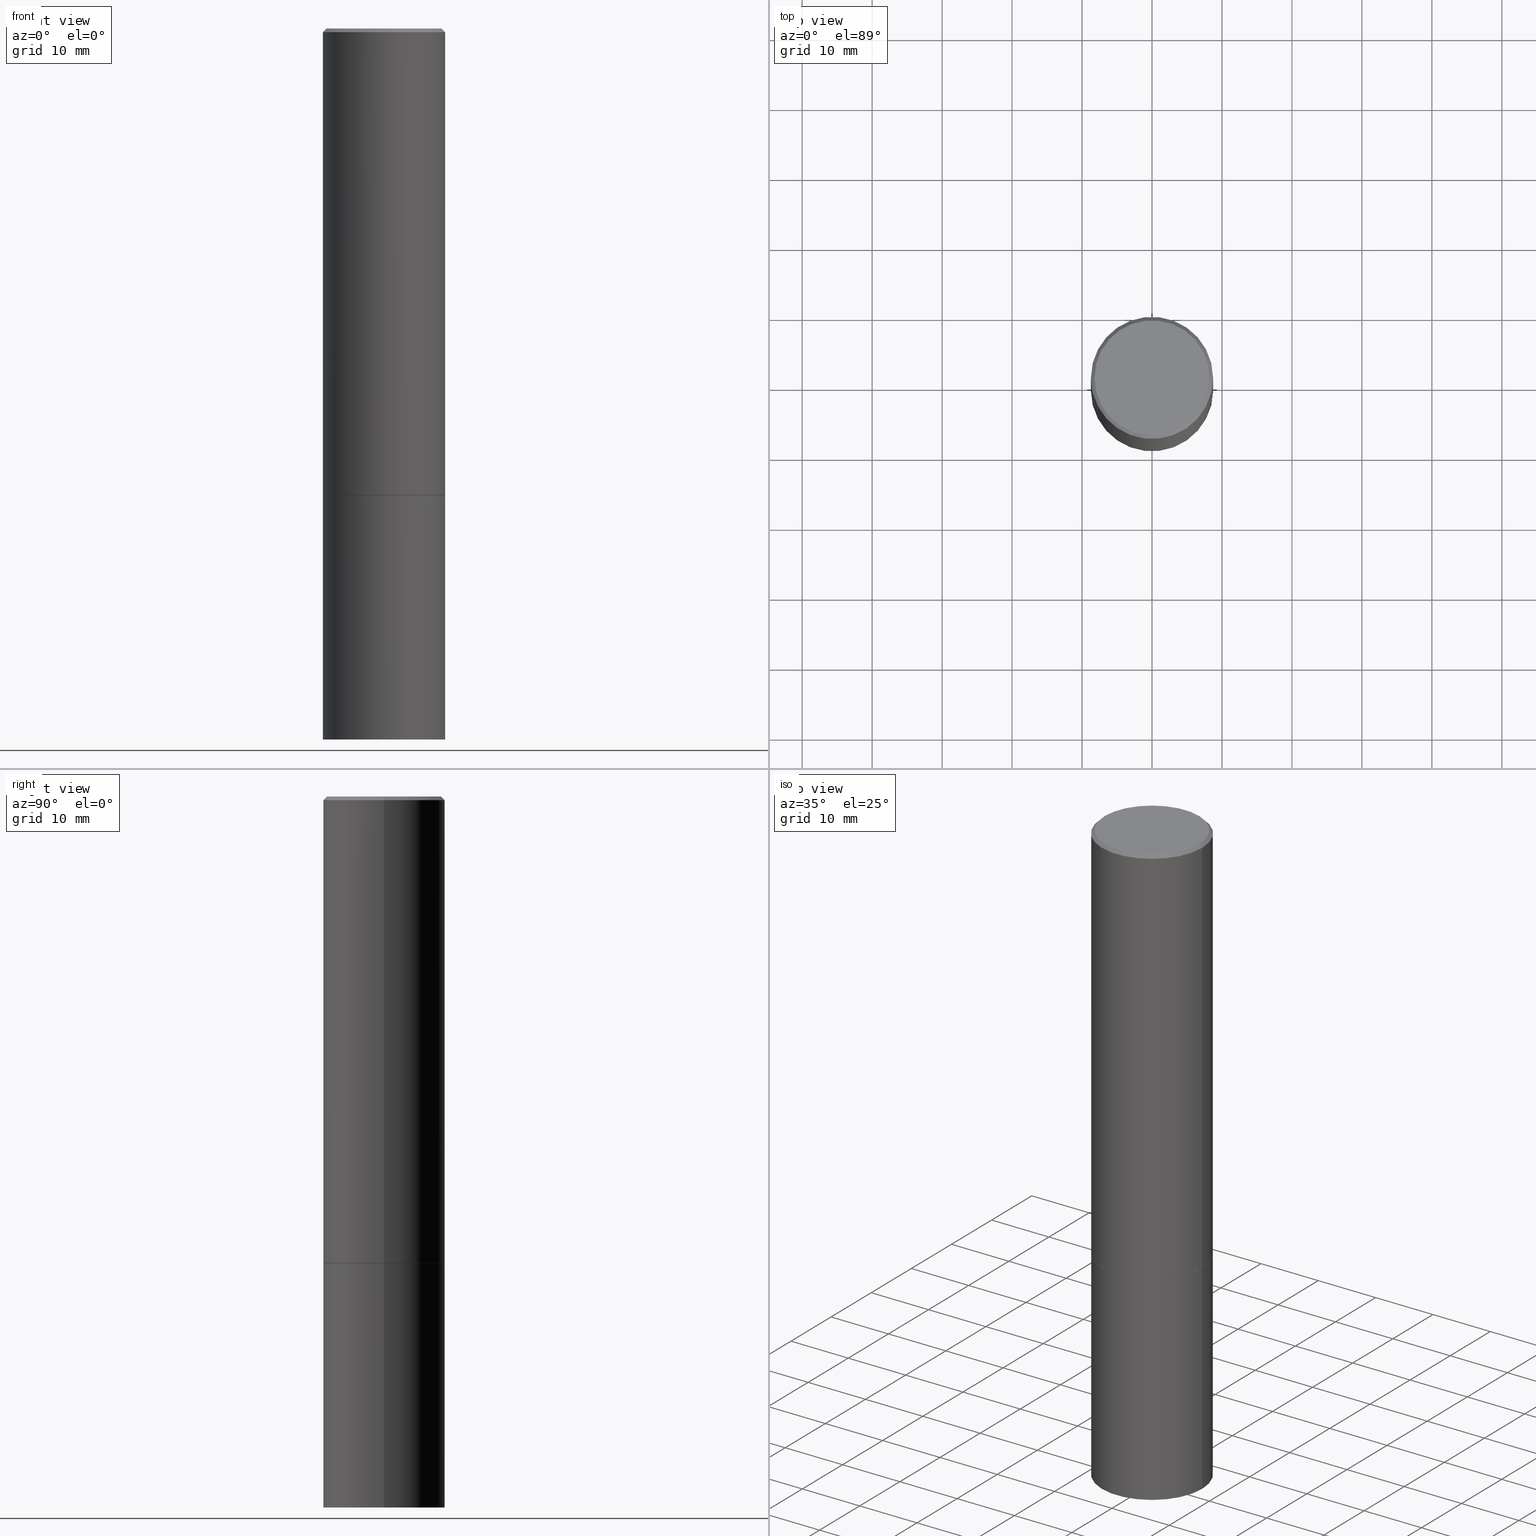
[diagram: canonical four-view strip — front | top / right | iso, engineering-drawing reading convention]
A machine part, canonical four-view strip (front | top / right | iso — engineering-drawing reading convention). The complete STEP part file that produces these views, byte-faithful:
ISO-10303-21;
HEADER;
FILE_DESCRIPTION (( 'STEP AP203' ),
    '1' );
FILE_NAME ('39169.STEP',
    '2023-03-21T21:01:31',
    ( '' ),
    ( '' ),
    'SwSTEP 2.0',
    'SolidWorks 2022',
    '' );
FILE_SCHEMA (( 'CONFIG_CONTROL_DESIGN' ));
ENDSEC;

DATA;
#1 = AXIS2_PLACEMENT_3D ( 'NONE', #155, #115, #390 ) ;
#2 = ORGANIZATION ( 'UNSPECIFIED', 'UNSPECIFIED', '' ) ;
#3 = PRODUCT_RELATED_PRODUCT_CATEGORY ( 'detail', '', ( #39 ) ) ;
#4 = CARTESIAN_POINT ( 'NONE',  ( 9.781875224740546387E-29, -1.396592535537258233E-14, -4.000000000000000000 ) ) ;
#5 = DIRECTION ( 'NONE',  ( -2.445468806185136597E-29, 3.491481338843145583E-15, 1.000000000000000000 ) ) ;
#6 = DIRECTION ( 'NONE',  ( 1.000000000000000000, -6.982962677686269077E-15, 0.000000000000000000 ) ) ;
#7 = ORIENTED_EDGE ( 'NONE', *, *, #37, .T. ) ;
#8 = APPROVAL_PERSON_ORGANIZATION ( #201, #285, #290 ) ;
#9 = CARTESIAN_POINT ( 'NONE',  ( 6.419355616235984688E-29, -9.165138514463258190E-15, -2.625000000000000444 ) ) ;
#10 = FACE_OUTER_BOUND ( 'NONE', #230, .T. ) ;
#11 = DIRECTION ( 'NONE',  ( -2.445468806185136597E-29, 3.491481338843145583E-15, 1.000000000000000000 ) ) ;
#12 = ORIENTED_EDGE ( 'NONE', *, *, #278, .T. ) ;
#13 = ADVANCED_FACE ( 'NONE', ( #309 ), #378, .T. ) ;
#14 = APPROVAL_ROLE ( '' ) ;
#15 = PRODUCT_DEFINITION_SHAPE ( 'NONE', 'NONE',  #24 ) ;
#16 = FACE_OUTER_BOUND ( 'NONE', #336, .T. ) ;
#17 = COORDINATED_UNIVERSAL_TIME_OFFSET ( 5, 0, .BEHIND. ) ;
#18 = CIRCLE ( 'NONE', #226, 0.3437499999999997224 ) ;
#19 = ADVANCED_FACE ( 'NONE', ( #34 ), #25, .T. ) ;
#20 = CC_DESIGN_DATE_AND_TIME_ASSIGNMENT ( #196, #179, ( #357 ) ) ;
#21 = CARTESIAN_POINT ( 'NONE',  ( 9.781875224740546387E-29, -1.396592535537258233E-14, -4.000000000000000000 ) ) ;
#22 = AXIS2_PLACEMENT_3D ( 'NONE', #275, #5, #216 ) ;
#23 = EDGE_LOOP ( 'NONE', ( #86, #35, #287, #113 ) ) ;
#24 = PRODUCT_DEFINITION ( 'UNKNOWN', '', #344, #301 ) ;
#25 = CONICAL_SURFACE ( 'NONE', #98, 0.3427499999999999991, 0.7853981633972775267 ) ;
#26 = VECTOR ( 'NONE', #126, 39.37007874015748143 ) ;
#27 = VERTEX_POINT ( 'NONE', #282 ) ;
#28 = VERTEX_POINT ( 'NONE', #166 ) ;
#29 = DIRECTION ( 'NONE',  ( -1.000000000000000000, 6.982962677686266711E-15, 0.000000000000000000 ) ) ;
#30 = DIRECTION ( 'NONE',  ( -2.445468806185136597E-29, 3.491481338843145583E-15, 1.000000000000000000 ) ) ;
#31 = VECTOR ( 'NONE', #319, 39.37007874015748143 ) ;
#32 = DIRECTION ( 'NONE',  ( 2.438088387897960049E-29, -3.491481338843145188E-15, -1.000000000000000000 ) ) ;
#33 = LOCAL_TIME ( 17, 1, 31.00000000000000000, #112 ) ;
#34 = FACE_OUTER_BOUND ( 'NONE', #337, .T. ) ;
#35 = ORIENTED_EDGE ( 'NONE', *, *, #342, .T. ) ;
#36 = ADVANCED_FACE ( 'NONE', ( #10 ), #38, .F. ) ;
#37 = EDGE_CURVE ( 'NONE', #151, #341, #339, .T. ) ;
#38 = PLANE ( 'NONE',  #111 ) ;
#39 = PRODUCT ( '39169', '39169', '', ( #298 ) ) ;
#40 = VECTOR ( 'NONE', #373, 39.37007874015748143 ) ;
#41 = VECTOR ( 'NONE', #148, 39.37007874015748143 ) ;
#42 = LINE ( 'NONE', #101, #364 ) ;
#43 = ADVANCED_BREP_SHAPE_REPRESENTATION ( '39169', ( #172, #171, #281 ), #178 ) ;
#44 = ADVANCED_FACE ( 'NONE', ( #100 ), #267, .F. ) ;
#45 = CALENDAR_DATE ( 2023, 21, 3 ) ;
#46 = APPROVAL_STATUS ( 'not_yet_approved' ) ;
#47 = DIRECTION ( 'NONE',  ( -2.445468806185136597E-29, 3.491481338843145583E-15, 1.000000000000000000 ) ) ;
#48 = COORDINATED_UNIVERSAL_TIME_OFFSET ( 5, 0, .BEHIND. ) ;
#49 = CIRCLE ( 'NONE', #236, 0.3437500000000000000 ) ;
#50 = APPROVAL_STATUS ( 'not_yet_approved' ) ;
#51 = EDGE_CURVE ( 'NONE', #70, #189, #355, .T. ) ;
#52 = LINE ( 'NONE', #185, #386 ) ;
#53 = ORIENTED_EDGE ( 'NONE', *, *, #64, .F. ) ;
#54 = CARTESIAN_POINT ( 'NONE',  ( 6.416910147429799085E-29, -9.161647033124413605E-15, -2.624000000000000110 ) ) ;
#55 = AXIS2_PLACEMENT_3D ( 'NONE', #156, #61, #60 ) ;
#56 = EDGE_CURVE ( 'NONE', #151, #58, #82, .T. ) ;
#57 = ORIENTED_EDGE ( 'NONE', *, *, #169, .F. ) ;
#58 = VERTEX_POINT ( 'NONE', #102 ) ;
#59 = CARTESIAN_POINT ( 'NONE',  ( 4.890937612370296805E-31, -6.982962677686323656E-17, -0.02000000000000009409 ) ) ;
#60 = DIRECTION ( 'NONE',  ( 1.000000000000000000, -6.982962677686267499E-15, 4.876176775795935232E-29 ) ) ;
#61 = DIRECTION ( 'NONE',  ( -2.445468806185136597E-29, 3.491481338843145583E-15, 1.000000000000000000 ) ) ;
#62 = CC_DESIGN_PERSON_AND_ORGANIZATION_ASSIGNMENT ( #197, #237, ( #39 ) ) ;
#63 = VERTEX_POINT ( 'NONE', #259 ) ;
#64 = EDGE_CURVE ( 'NONE', #27, #271, #272, .T. ) ;
#65 = ORIENTED_EDGE ( 'NONE', *, *, #231, .T. ) ;
#66 = DIRECTION ( 'NONE',  ( -1.000000000000000000, 6.982962677686265922E-15, -4.876176775795935793E-29 ) ) ;
#67 = ORIENTED_EDGE ( 'NONE', *, *, #283, .T. ) ;
#68 = ADVANCED_FACE ( 'NONE', ( #200 ), #318, .T. ) ;
#69 = CC_DESIGN_PERSON_AND_ORGANIZATION_ASSIGNMENT ( #240, #173, ( #24 ) ) ;
#70 = VERTEX_POINT ( 'NONE', #235 ) ;
#71 = CIRCLE ( 'NONE', #238, 0.3237499999999996492 ) ;
#72 = AXIS2_PLACEMENT_3D ( 'NONE', #150, #352, #356 ) ;
#73 = LINE ( 'NONE', #353, #41 ) ;
#74 = LINE ( 'NONE', #139, #31 ) ;
#75 = DATE_AND_TIME ( #322, #227 ) ;
#76 = CARTESIAN_POINT ( 'NONE',  ( 0.3437500000000000000, -2.400393420454653787E-15, 1.676185766679852859E-29 ) ) ;
#77 = AXIS2_PLACEMENT_3D ( 'NONE', #268, #239, #81 ) ;
#78 = EDGE_CURVE ( 'NONE', #189, #70, #71, .T. ) ;
#79 = CARTESIAN_POINT ( 'NONE',  ( 0.000000000000000000, 0.000000000000000000, 0.000000000000000000 ) ) ;
#80 = PERSON_AND_ORGANIZATION_ROLE ( 'design_supplier' ) ;
#81 = DIRECTION ( 'NONE',  ( 1.000000000000000000, -6.982962677686265133E-15, 0.000000000000000000 ) ) ;
#82 = CIRCLE ( 'NONE', #177, 0.3437500000000000000 ) ;
#83 = ORIENTED_EDGE ( 'NONE', *, *, #108, .F. ) ;
#84 = CC_DESIGN_PERSON_AND_ORGANIZATION_ASSIGNMENT ( #262, #80, ( #344 ) ) ;
#85 = AXIS2_PLACEMENT_3D ( 'NONE', #306, #32, #66 ) ;
#86 = ORIENTED_EDGE ( 'NONE', *, *, #78, .F. ) ;
#87 = CYLINDRICAL_SURFACE ( 'NONE', #162, 0.3437500000000000000 ) ;
#88 = DIRECTION ( 'NONE',  ( 2.445468806185136597E-29, -3.491481338843145583E-15, -1.000000000000000000 ) ) ;
#89 = EDGE_LOOP ( 'NONE', ( #217, #244, #67, #186 ) ) ;
#90 = EDGE_CURVE ( 'NONE', #70, #341, #382, .T. ) ;
#91 = CARTESIAN_POINT ( 'NONE',  ( 6.419355616235984688E-29, -9.165138514463258190E-15, -2.625000000000000444 ) ) ;
#92 = AXIS2_PLACEMENT_3D ( 'NONE', #116, #210, #147 ) ;
#93 = CC_DESIGN_DATE_AND_TIME_ASSIGNMENT ( #136, #141, ( #24 ) ) ;
#94 = EDGE_LOOP ( 'NONE', ( #83, #277, #332 ) ) ;
#95 = ORIENTED_EDGE ( 'NONE', *, *, #193, .F. ) ;
#96 = CARTESIAN_POINT ( 'NONE',  ( 0.000000000000000000, 0.000000000000000000, 0.000000000000000000 ) ) ;
#97 = CARTESIAN_POINT ( 'NONE',  ( 6.419355616235984688E-29, -9.165138514463258190E-15, -2.625000000000000444 ) ) ;
#98 = AXIS2_PLACEMENT_3D ( 'NONE', #312, #371, #164 ) ;
#99 = CARTESIAN_POINT ( 'NONE',  ( 0.3437499999999998335, -2.400393420454653393E-15, 1.676185766679852018E-29 ) ) ;
#100 = FACE_OUTER_BOUND ( 'NONE', #188, .T. ) ;
#101 = CARTESIAN_POINT ( 'NONE',  ( 0.3427499999999999991, -1.155854897224022715E-14, -2.625000000000000444 ) ) ;
#102 = CARTESIAN_POINT ( 'NONE',  ( 0.3437500000000000000, -1.156204045357906700E-14, -2.624000000000000110 ) ) ;
#103 = CLOSED_SHELL ( 'NONE', ( #19, #375, #110, #123, #257, #13, #36, #379 ) ) ;
#104 = APPROVAL_DATE_TIME ( #75, #203 ) ;
#105 = LOCAL_TIME ( 17, 1, 31.00000000000000000, #48 ) ;
#106 = EDGE_CURVE ( 'NONE', #204, #152, #349, .T. ) ;
#107 = DIRECTION ( 'NONE',  ( -0.7071067811865469066, 2.468850131082249961E-15, -0.7071067811865482389 ) ) ;
#108 = EDGE_CURVE ( 'NONE', #63, #204, #74, .T. ) ;
#109 = CALENDAR_DATE ( 2023, 21, 3 ) ;
#110 = ADVANCED_FACE ( 'NONE', ( #380 ), #307, .T. ) ;
#111 = AXIS2_PLACEMENT_3D ( 'NONE', #97, #134, #225 ) ;
#112 = COORDINATED_UNIVERSAL_TIME_OFFSET ( 5, 0, .BEHIND. ) ;
#113 = ORIENTED_EDGE ( 'NONE', *, *, #90, .F. ) ;
#114 = LINE ( 'NONE', #181, #199 ) ;
#115 = DIRECTION ( 'NONE',  ( 2.445468806185136597E-29, -3.491481338843145583E-15, -1.000000000000000000 ) ) ;
#116 = CARTESIAN_POINT ( 'NONE',  ( 6.419355616235983567E-29, -9.165138514463256612E-15, -2.625000000000000000 ) ) ;
#117 = DIRECTION ( 'NONE',  ( -2.445468806185136877E-29, 3.491481338843145188E-15, 1.000000000000000000 ) ) ;
#118 = EDGE_LOOP ( 'NONE', ( #286, #222, #12, #57 ) ) ;
#119 = CIRCLE ( 'NONE', #170, 0.3437500000000000000 ) ;
#120 = CARTESIAN_POINT ( 'NONE',  ( 0.3437500000000006661, -1.632422154210654946E-14, -4.000000000000000000 ) ) ;
#121 = LENGTH_MEASURE_WITH_UNIT ( LENGTH_MEASURE( 0.02539999999999999897 ), #167 );
#122 = APPROVAL_DATE_TIME ( #246, #285 ) ;
#123 = ADVANCED_FACE ( 'NONE', ( #16 ), #245, .T. ) ;
#124 = DIRECTION ( 'NONE',  ( 1.000000000000000000, 0.000000000000000000, 0.000000000000000000 ) ) ;
#125 = ORIENTED_EDGE ( 'NONE', *, *, #175, .T. ) ;
#126 = DIRECTION ( 'NONE',  ( -0.9986295347545742773, 6.790662755453668466E-15, -0.05233595624293643084 ) ) ;
#127 = ORIENTED_EDGE ( 'NONE', *, *, #342, .F. ) ;
#128 = AXIS2_PLACEMENT_3D ( 'NONE', #157, #252, #29 ) ;
#129 = CARTESIAN_POINT ( 'NONE',  ( -0.3437499999999997224, 2.330563793677788911E-15, -0.02000000000000009409 ) ) ;
#130 = DIRECTION ( 'NONE',  ( 1.000000000000000000, -6.982962677686265133E-15, 0.000000000000000000 ) ) ;
#131 = DIRECTION ( 'NONE',  ( 2.438088387897960049E-29, -3.491481338843145188E-15, -1.000000000000000000 ) ) ;
#132 = ORIENTED_EDGE ( 'NONE', *, *, #51, .T. ) ;
#133 = LINE ( 'NONE', #99, #145 ) ;
#134 = DIRECTION ( 'NONE',  ( -2.438088387897960049E-29, 3.491481338843145188E-15, 1.000000000000000000 ) ) ;
#135 = VECTOR ( 'NONE', #107, 39.37007874015748143 ) ;
#136 = DATE_AND_TIME ( #346, #274 ) ;
#137 = DIRECTION ( 'NONE',  ( -2.445468806185136597E-29, 3.491481338843145583E-15, 1.000000000000000000 ) ) ;
#138 = COORDINATED_UNIVERSAL_TIME_OFFSET ( 5, 0, .BEHIND. ) ;
#139 = CARTESIAN_POINT ( 'NONE',  ( 7.993848666300651617E-19, -1.390302571108676536E-14, -3.981984825871457190 ) ) ;
#140 = AXIS2_PLACEMENT_3D ( 'NONE', #351, #324, #316 ) ;
#141 = DATE_TIME_ROLE ( 'creation_date' ) ;
#142 = DIRECTION ( 'NONE',  ( 1.000000000000000000, -6.982962677686263555E-15, 0.000000000000000000 ) ) ;
#143 = APPROVAL_STATUS ( 'not_yet_approved' ) ;
#144 = AXIS2_PLACEMENT_3D ( 'NONE', #205, #137, #350 ) ;
#145 = VECTOR ( 'NONE', #117, 39.37007874015748143 ) ;
#146 = DIRECTION ( 'NONE',  ( -2.445468806185136597E-29, 3.491481338843145583E-15, 1.000000000000000000 ) ) ;
#147 = DIRECTION ( 'NONE',  ( 1.000000000000000000, -6.982962677686269077E-15, 0.000000000000000000 ) ) ;
#148 = DIRECTION ( 'NONE',  ( -0.7071067811864267805, 7.493145998869918709E-15, 0.7071067811866682540 ) ) ;
#149 = ORIENTED_EDGE ( 'NONE', *, *, #78, .T. ) ;
#150 = CARTESIAN_POINT ( 'NONE',  ( 4.890937612370296805E-31, -6.982962677686323656E-17, -0.02000000000000009409 ) ) ;
#151 = VERTEX_POINT ( 'NONE', #250 ) ;
#152 = VERTEX_POINT ( 'NONE', #187 ) ;
#153 = CC_DESIGN_APPROVAL ( #279, ( #344 ) ) ;
#154 = CARTESIAN_POINT ( 'NONE',  ( 0.000000000000000000, 0.000000000000000000, 0.000000000000000000 ) ) ;
#155 = CARTESIAN_POINT ( 'NONE',  ( 4.890937612370296805E-31, -6.982962677686323656E-17, -0.02000000000000009409 ) ) ;
#156 = CARTESIAN_POINT ( 'NONE',  ( 0.000000000000000000, 0.000000000000000000, 0.000000000000000000 ) ) ;
#157 = CARTESIAN_POINT ( 'NONE',  ( 1.060161191344789336E-27, -1.513629209411318885E-13, -43.35206356602893152 ) ) ;
#158 = DIRECTION ( 'NONE',  ( 0.000000000000000000, 0.000000000000000000, 1.000000000000000000 ) ) ;
#159 = EDGE_LOOP ( 'NONE', ( #305, #7, #256, #255 ) ) ;
#160 = CARTESIAN_POINT ( 'NONE',  ( -0.3437500000000006661, -1.156553193491792420E-14, -4.000000000000000000 ) ) ;
#161 = ORIENTED_EDGE ( 'NONE', *, *, #108, .T. ) ;
#162 = AXIS2_PLACEMENT_3D ( 'NONE', #362, #326, #213 ) ;
#163 = FACE_OUTER_BOUND ( 'NONE', #94, .T. ) ;
#164 = DIRECTION ( 'NONE',  ( 1.000000000000000000, -6.982962677686265133E-15, 0.000000000000000000 ) ) ;
#165 = CARTESIAN_POINT ( 'NONE',  ( 0.3427499999999999991, -1.155854897224022715E-14, -2.625000000000000444 ) ) ;
#166 = CARTESIAN_POINT ( 'NONE',  ( 0.3437499999999997224, -2.428125813510825301E-15, -0.02000000000000009409 ) ) ;
#167 =( LENGTH_UNIT ( ) NAMED_UNIT ( * ) SI_UNIT ( $, .METRE. ) );
#168 = ORIENTED_EDGE ( 'NONE', *, *, #284, .T. ) ;
#169 = EDGE_CURVE ( 'NONE', #341, #28, #18, .T. ) ;
#170 = AXIS2_PLACEMENT_3D ( 'NONE', #21, #146, #270 ) ;
#171 = MANIFOLD_SOLID_BREP ( 'Body-Move/Copy2[2]', #103 ) ;
#172 = MANIFOLD_SOLID_BREP ( 'Body-Move/Copy2[1]', #325 ) ;
#173 = PERSON_AND_ORGANIZATION_ROLE ( 'creator' ) ;
#174 = APPLICATION_PROTOCOL_DEFINITION ( 'international standard', 'config_control_design', 1994, #367 ) ;
#175 = EDGE_CURVE ( 'NONE', #204, #333, #49, .T. ) ;
#176 = DIRECTION ( 'NONE',  ( -2.445468806185136597E-29, 3.491481338843145583E-15, 1.000000000000000000 ) ) ;
#177 = AXIS2_PLACEMENT_3D ( 'NONE', #263, #202, #142 ) ;
#178 =( GEOMETRIC_REPRESENTATION_CONTEXT ( 3 ) GLOBAL_UNCERTAINTY_ASSIGNED_CONTEXT ( ( #215 ) ) GLOBAL_UNIT_ASSIGNED_CONTEXT ( ( #251, #288, #388 ) ) REPRESENTATION_CONTEXT ( 'NONE', 'WORKASPACE' ) );
#179 = DATE_TIME_ROLE ( 'classification_date' ) ;
#180 = APPROVAL_ROLE ( '' ) ;
#181 = CARTESIAN_POINT ( 'NONE',  ( -0.3437500000000000000, 2.442490654175344389E-15, -1.690883937275123635E-29 ) ) ;
#182 = ORIENTED_EDGE ( 'NONE', *, *, #283, .F. ) ;
#183 = APPROVAL_PERSON_ORGANIZATION ( #377, #279, #14 ) ;
#184 = DIRECTION ( 'NONE',  ( -2.445468806185136597E-29, 3.491481338843145583E-15, 1.000000000000000000 ) ) ;
#185 = CARTESIAN_POINT ( 'NONE',  ( 0.3437499999999997224, -2.428125813510825301E-15, -0.02000000000000009409 ) ) ;
#186 = ORIENTED_EDGE ( 'NONE', *, *, #56, .F. ) ;
#187 = CARTESIAN_POINT ( 'NONE',  ( 0.3437500000000000000, -1.156553193491791158E-14, -2.625000000000000000 ) ) ;
#188 = EDGE_LOOP ( 'NONE', ( #214, #161, #330 ) ) ;
#189 = VERTEX_POINT ( 'NONE', #328 ) ;
#190 = AXIS2_PLACEMENT_3D ( 'NONE', #9, #30, #130 ) ;
#191 = ORIENTED_EDGE ( 'NONE', *, *, #308, .F. ) ;
#192 = ORIENTED_EDGE ( 'NONE', *, *, #51, .F. ) ;
#193 = EDGE_CURVE ( 'NONE', #333, #365, #114, .T. ) ;
#194 = CIRCLE ( 'NONE', #22, 0.3437500000000000000 ) ;
#195 = PLANE ( 'NONE',  #374 ) ;
#196 = DATE_AND_TIME ( #109, #241 ) ;
#197 = PERSON_AND_ORGANIZATION ( #232, #2 ) ;
#198 = PERSON_AND_ORGANIZATION ( #232, #2 ) ;
#199 = VECTOR ( 'NONE', #243, 39.37007874015748143 ) ;
#200 = FACE_OUTER_BOUND ( 'NONE', #296, .T. ) ;
#201 = PERSON_AND_ORGANIZATION ( #232, #2 ) ;
#202 = DIRECTION ( 'NONE',  ( -2.445468806185136597E-29, 3.491481338843145583E-15, 1.000000000000000000 ) ) ;
#203 = APPROVAL ( #143, 'UNSPECIFIED' ) ;
#204 = VERTEX_POINT ( 'NONE', #120 ) ;
#205 = CARTESIAN_POINT ( 'NONE',  ( -1.043851414335219820E-46, 1.490343170380447200E-32, 4.268512490100411279E-18 ) ) ;
#206 = DIRECTION ( 'NONE',  ( 0.7071067811865469066, -7.319954787623254468E-15, -0.7071067811865482389 ) ) ;
#207 = APPROVAL_PERSON_ORGANIZATION ( #233, #203, #180 ) ;
#208 = DIRECTION ( 'NONE',  ( -2.445468806185136597E-29, 3.491481338843145583E-15, 1.000000000000000000 ) ) ;
#209 = SHAPE_DEFINITION_REPRESENTATION ( #15, #43 ) ;
#210 = DIRECTION ( 'NONE',  ( -2.445468806185136597E-29, 3.491481338843145583E-15, 1.000000000000000000 ) ) ;
#211 = EDGE_LOOP ( 'NONE', ( #95, #65, #223, #191 ) ) ;
#212 = ADVANCED_FACE ( 'NONE', ( #276 ), #87, .T. ) ;
#213 = DIRECTION ( 'NONE',  ( 1.000000000000000000, -6.982962677686265922E-15, 4.876176775795935793E-29 ) ) ;
#214 = ORIENTED_EDGE ( 'NONE', *, *, #314, .F. ) ;
#215 = UNCERTAINTY_MEASURE_WITH_UNIT (LENGTH_MEASURE( 1.000000000000000082E-05 ), #251, 'distance_accuracy_value', 'NONE');
#216 = DIRECTION ( 'NONE',  ( 1.000000000000000000, -6.982962677686269077E-15, 0.000000000000000000 ) ) ;
#217 = ORIENTED_EDGE ( 'NONE', *, *, #284, .F. ) ;
#218 = CIRCLE ( 'NONE', #249, 0.3427499999999999991 ) ;
#219 = FACE_OUTER_BOUND ( 'NONE', #360, .T. ) ;
#220 = DIRECTION ( 'NONE',  ( -1.000000000000000000, 6.982962677686266711E-15, 0.000000000000000000 ) ) ;
#221 = DIRECTION ( 'NONE',  ( -1.000000000000000000, 6.982962677686265922E-15, -4.876176775795935793E-29 ) ) ;
#222 = ORIENTED_EDGE ( 'NONE', *, *, #56, .T. ) ;
#223 = ORIENTED_EDGE ( 'NONE', *, *, #106, .T. ) ;
#224 = DIRECTION ( 'NONE',  ( 1.000000000000000000, -6.982962677686267499E-15, 4.876176775795935232E-29 ) ) ;
#225 = DIRECTION ( 'NONE',  ( 1.000000000000000000, -6.982962677686265922E-15, 4.876176775795935793E-29 ) ) ;
#226 = AXIS2_PLACEMENT_3D ( 'NONE', #59, #208, #302 ) ;
#227 = LOCAL_TIME ( 17, 1, 31.00000000000000000, #315 ) ;
#228 = CARTESIAN_POINT ( 'NONE',  ( 2.400393420454718079E-15, 0.3437499999999908407, -2.625000000000000888 ) ) ;
#229 = EDGE_CURVE ( 'NONE', #271, #27, #218, .T. ) ;
#230 = EDGE_LOOP ( 'NONE', ( #313, #53 ) ) ;
#231 = EDGE_CURVE ( 'NONE', #333, #204, #119, .T. ) ;
#232 = PERSON ( 'UNSPECIFIED', 'UNSPECIFIED', 'UNSPECIFIED', ('UNSPECIFIED'), ('UNSPECIFIED'), ('UNSPECIFIED') ) ;
#233 = PERSON_AND_ORGANIZATION ( #232, #2 ) ;
#234 = APPLICATION_CONTEXT ( 'configuration controlled 3d designs of mechanical parts and assemblies' ) ;
#235 = CARTESIAN_POINT ( 'NONE',  ( -0.3237499999999996492, 2.295648980289358051E-15, 4.268512490084478446E-18 ) ) ;
#236 = AXIS2_PLACEMENT_3D ( 'NONE', #4, #359, #6 ) ;
#237 = PERSON_AND_ORGANIZATION_ROLE ( 'design_owner' ) ;
#238 = AXIS2_PLACEMENT_3D ( 'NONE', #260, #176, #293 ) ;
#239 = DIRECTION ( 'NONE',  ( -2.445468806185136597E-29, 3.491481338843145583E-15, 1.000000000000000000 ) ) ;
#240 = PERSON_AND_ORGANIZATION ( #232, #2 ) ;
#241 = LOCAL_TIME ( 17, 1, 31.00000000000000000, #138 ) ;
#242 = EDGE_LOOP ( 'NONE', ( #361, #280 ) ) ;
#243 = DIRECTION ( 'NONE',  ( -2.445468806185136877E-29, 3.491481338843145188E-15, 1.000000000000000000 ) ) ;
#244 = ORIENTED_EDGE ( 'NONE', *, *, #64, .T. ) ;
#245 = CONICAL_SURFACE ( 'NONE', #1, 0.3437499999999997224, 0.7853981633974473908 ) ;
#246 = DATE_AND_TIME ( #381, #33 ) ;
#247 = EDGE_CURVE ( 'NONE', #58, #151, #327, .T. ) ;
#248 = ORIENTED_EDGE ( 'NONE', *, *, #247, .F. ) ;
#249 = AXIS2_PLACEMENT_3D ( 'NONE', #91, #331, #295 ) ;
#250 = CARTESIAN_POINT ( 'NONE',  ( -0.3437500000000000000, -2.173247675775292485E-15, -2.624000000000000110 ) ) ;
#251 =( CONVERSION_BASED_UNIT ( 'INCH', #121 ) LENGTH_UNIT ( ) NAMED_UNIT ( #266 ) );
#252 = DIRECTION ( 'NONE',  ( 2.445468806185136597E-29, -3.491481338843145583E-15, -1.000000000000000000 ) ) ;
#253 = ORIENTED_EDGE ( 'NONE', *, *, #169, .T. ) ;
#254 = DIRECTION ( 'NONE',  ( 1.000000000000000000, -6.982962677686263555E-15, 0.000000000000000000 ) ) ;
#255 = ORIENTED_EDGE ( 'NONE', *, *, #278, .F. ) ;
#256 = ORIENTED_EDGE ( 'NONE', *, *, #347, .F. ) ;
#257 = ADVANCED_FACE ( 'NONE', ( #366 ), #369, .T. ) ;
#258 = CARTESIAN_POINT ( 'NONE',  ( -0.3437499999999998335, 2.442490654175343206E-15, -1.690883937275123074E-29 ) ) ;
#259 = CARTESIAN_POINT ( 'NONE',  ( 9.737261470902389695E-29, -1.390382509595329685E-14, -3.981984825871457190 ) ) ;
#260 = CARTESIAN_POINT ( 'NONE',  ( -1.043851414335219820E-46, 1.490343170380447200E-32, 4.268512490100411279E-18 ) ) ;
#261 = CC_DESIGN_APPROVAL ( #285, ( #357 ) ) ;
#262 = PERSON_AND_ORGANIZATION ( #232, #2 ) ;
#263 = CARTESIAN_POINT ( 'NONE',  ( 6.416910147429799085E-29, -9.161647033124413605E-15, -2.624000000000000110 ) ) ;
#264 = APPROVAL_DATE_TIME ( #265, #279 ) ;
#265 = DATE_AND_TIME ( #45, #105 ) ;
#266 = DIMENSIONAL_EXPONENTS ( 1.000000000000000000, 0.000000000000000000, 0.000000000000000000, 0.000000000000000000, 0.000000000000000000, 0.000000000000000000, 0.000000000000000000 ) ;
#267 = CONICAL_SURFACE ( 'NONE', #338, 751.2258538476739886, 1.518436449235074148 ) ;
#268 = CARTESIAN_POINT ( 'NONE',  ( 6.419355616235984688E-29, -9.165138514463258190E-15, -2.625000000000000444 ) ) ;
#269 = CIRCLE ( 'NONE', #72, 0.3437499999999997224 ) ;
#270 = DIRECTION ( 'NONE',  ( 1.000000000000000000, -6.982962677686269077E-15, 0.000000000000000000 ) ) ;
#271 = VERTEX_POINT ( 'NONE', #165 ) ;
#272 = CIRCLE ( 'NONE', #77, 0.3427499999999999991 ) ;
#273 = ORIENTED_EDGE ( 'NONE', *, *, #90, .T. ) ;
#274 = LOCAL_TIME ( 17, 1, 31.00000000000000000, #17 ) ;
#275 = CARTESIAN_POINT ( 'NONE',  ( 6.419355616235983567E-29, -9.165138514463256612E-15, -2.625000000000000000 ) ) ;
#276 = FACE_OUTER_BOUND ( 'NONE', #211, .T. ) ;
#277 = ORIENTED_EDGE ( 'NONE', *, *, #314, .T. ) ;
#278 = EDGE_CURVE ( 'NONE', #58, #28, #133, .T. ) ;
#279 = APPROVAL ( #50, 'UNSPECIFIED' ) ;
#280 = ORIENTED_EDGE ( 'NONE', *, *, #308, .T. ) ;
#281 = AXIS2_PLACEMENT_3D ( 'NONE', #154, #158, #124 ) ;
#282 = CARTESIAN_POINT ( 'NONE',  ( -0.3427499999999999991, -6.724454833297293196E-15, -2.625000000000000444 ) ) ;
#283 = EDGE_CURVE ( 'NONE', #271, #58, #42, .T. ) ;
#284 = EDGE_CURVE ( 'NONE', #27, #151, #73, .T. ) ;
#285 = APPROVAL ( #46, 'UNSPECIFIED' ) ;
#286 = ORIENTED_EDGE ( 'NONE', *, *, #37, .F. ) ;
#287 = ORIENTED_EDGE ( 'NONE', *, *, #347, .T. ) ;
#288 =( NAMED_UNIT ( * ) PLANE_ANGLE_UNIT ( ) SI_UNIT ( $, .RADIAN. ) );
#289 = PERSON_AND_ORGANIZATION ( #232, #2 ) ;
#290 = APPROVAL_ROLE ( '' ) ;
#291 = AXIS2_PLACEMENT_3D ( 'NONE', #54, #184, #254 ) ;
#292 = PERSON_AND_ORGANIZATION_ROLE ( 'creator' ) ;
#293 = DIRECTION ( 'NONE',  ( 1.000000000000000000, -6.982962677686266711E-15, 4.876157412475881652E-29 ) ) ;
#294 = VECTOR ( 'NONE', #385, 39.37007874015748143 ) ;
#295 = DIRECTION ( 'NONE',  ( 1.000000000000000000, -6.982962677686265133E-15, 0.000000000000000000 ) ) ;
#296 = EDGE_LOOP ( 'NONE', ( #125, #358, #368, #300 ) ) ;
#297 = CARTESIAN_POINT ( 'NONE',  ( 1.060161191344789336E-27, -1.513629209411318885E-13, -43.35206356602893152 ) ) ;
#298 = MECHANICAL_CONTEXT ( 'NONE', #234, 'mechanical' ) ;
#299 = CARTESIAN_POINT ( 'NONE',  ( -0.3437500000000000000, -9.123041280742575082E-15, -2.625000000000000000 ) ) ;
#300 = ORIENTED_EDGE ( 'NONE', *, *, #106, .F. ) ;
#301 = DESIGN_CONTEXT ( 'detailed design', #367, 'design' ) ;
#302 = DIRECTION ( 'NONE',  ( 1.000000000000000000, -6.982962677686266711E-15, 0.000000000000000000 ) ) ;
#303 = ADVANCED_FACE ( 'NONE', ( #389 ), #195, .F. ) ;
#304 = CARTESIAN_POINT ( 'NONE',  ( -7.993848664353087702E-19, -1.390302571108676536E-14, -3.981984825871457190 ) ) ;
#305 = ORIENTED_EDGE ( 'NONE', *, *, #247, .T. ) ;
#306 = CARTESIAN_POINT ( 'NONE',  ( 2.260734166900926402E-15, 0.3237499999999996492, -1.128232827205417129E-15 ) ) ;
#307 = CONICAL_SURFACE ( 'NONE', #140, 0.3437499999999997224, 0.7853981633974473908 ) ;
#308 = EDGE_CURVE ( 'NONE', #365, #152, #194, .T. ) ;
#309 = FACE_OUTER_BOUND ( 'NONE', #89, .T. ) ;
#310 = CC_DESIGN_SECURITY_CLASSIFICATION ( #357, ( #344 ) ) ;
#311 = CC_DESIGN_PERSON_AND_ORGANIZATION_ASSIGNMENT ( #289, #383, ( #357 ) ) ;
#312 = CARTESIAN_POINT ( 'NONE',  ( 6.419355616235984688E-29, -9.165138514463258190E-15, -2.625000000000000444 ) ) ;
#313 = ORIENTED_EDGE ( 'NONE', *, *, #229, .F. ) ;
#314 = EDGE_CURVE ( 'NONE', #63, #333, #370, .T. ) ;
#315 = COORDINATED_UNIVERSAL_TIME_OFFSET ( 5, 0, .BEHIND. ) ;
#316 = DIRECTION ( 'NONE',  ( -1.000000000000000000, 6.982962677686266711E-15, 0.000000000000000000 ) ) ;
#317 = APPLICATION_PROTOCOL_DEFINITION ( 'international standard', 'config_control_design', 1994, #234 ) ;
#318 = CYLINDRICAL_SURFACE ( 'NONE', #363, 0.3437500000000000000 ) ;
#319 = DIRECTION ( 'NONE',  ( 0.9986295347545742773, -7.033825938271997912E-15, -0.05233595624293643084 ) ) ;
#320 = CC_DESIGN_APPROVAL ( #203, ( #24 ) ) ;
#321 = DIRECTION ( 'NONE',  ( 1.000000000000000000, -6.982962677686265922E-15, 4.876176775795935793E-29 ) ) ;
#322 = CALENDAR_DATE ( 2023, 21, 3 ) ;
#323 = FACE_OUTER_BOUND ( 'NONE', #159, .T. ) ;
#324 = DIRECTION ( 'NONE',  ( 2.445468806185136597E-29, -3.491481338843145583E-15, -1.000000000000000000 ) ) ;
#325 = CLOSED_SHELL ( 'NONE', ( #68, #44, #329, #212, #303 ) ) ;
#326 = DIRECTION ( 'NONE',  ( -2.445468806185136597E-29, 3.491481338843145583E-15, 1.000000000000000000 ) ) ;
#327 = CIRCLE ( 'NONE', #291, 0.3437500000000000000 ) ;
#328 = CARTESIAN_POINT ( 'NONE',  ( 0.3237499999999996492, -2.324606020144678320E-15, 4.268512490116445031E-18 ) ) ;
#329 = ADVANCED_FACE ( 'NONE', ( #163 ), #387, .F. ) ;
#330 = ORIENTED_EDGE ( 'NONE', *, *, #231, .F. ) ;
#331 = DIRECTION ( 'NONE',  ( -2.445468806185136597E-29, 3.491481338843145583E-15, 1.000000000000000000 ) ) ;
#332 = ORIENTED_EDGE ( 'NONE', *, *, #175, .F. ) ;
#333 = VERTEX_POINT ( 'NONE', #160 ) ;
#334 = AXIS2_PLACEMENT_3D ( 'NONE', #96, #11, #224 ) ;
#335 = CYLINDRICAL_SURFACE ( 'NONE', #55, 0.3437499999999998335 ) ;
#336 = EDGE_LOOP ( 'NONE', ( #127, #192, #273, #253 ) ) ;
#337 = EDGE_LOOP ( 'NONE', ( #354, #168, #248, #182 ) ) ;
#338 = AXIS2_PLACEMENT_3D ( 'NONE', #297, #88, #220 ) ;
#339 = LINE ( 'NONE', #258, #40 ) ;
#340 = CIRCLE ( 'NONE', #92, 0.3437500000000000000 ) ;
#341 = VERTEX_POINT ( 'NONE', #129 ) ;
#342 = EDGE_CURVE ( 'NONE', #189, #28, #52, .T. ) ;
#343 = DIRECTION ( 'NONE',  ( 0.7071067811864267805, -2.468850131080992517E-15, 0.7071067811866682540 ) ) ;
#344 = PRODUCT_DEFINITION_FORMATION_WITH_SPECIFIED_SOURCE ( 'ANY', '', #39, .NOT_KNOWN. ) ;
#345 = CARTESIAN_POINT ( 'NONE',  ( -0.3437499999999997224, 2.330563793677788911E-15, -0.02000000000000009409 ) ) ;
#346 = CALENDAR_DATE ( 2023, 21, 3 ) ;
#347 = EDGE_CURVE ( 'NONE', #28, #341, #269, .T. ) ;
#348 = EDGE_CURVE ( 'NONE', #152, #365, #340, .T. ) ;
#349 = LINE ( 'NONE', #76, #294 ) ;
#350 = DIRECTION ( 'NONE',  ( 1.000000000000000000, -6.982962677686266711E-15, 4.876157412475881652E-29 ) ) ;
#351 = CARTESIAN_POINT ( 'NONE',  ( 4.890937612370296805E-31, -6.982962677686323656E-17, -0.02000000000000009409 ) ) ;
#352 = DIRECTION ( 'NONE',  ( -2.445468806185136597E-29, 3.491481338843145583E-15, 1.000000000000000000 ) ) ;
#353 = CARTESIAN_POINT ( 'NONE',  ( -0.3427499999999999991, -6.729753287645514809E-15, -2.625000000000000444 ) ) ;
#354 = ORIENTED_EDGE ( 'NONE', *, *, #229, .T. ) ;
#355 = CIRCLE ( 'NONE', #144, 0.3237499999999996492 ) ;
#356 = DIRECTION ( 'NONE',  ( 1.000000000000000000, -6.982962677686266711E-15, 0.000000000000000000 ) ) ;
#357 = SECURITY_CLASSIFICATION ( '', '', #384 ) ;
#358 = ORIENTED_EDGE ( 'NONE', *, *, #193, .T. ) ;
#359 = DIRECTION ( 'NONE',  ( -2.445468806185136597E-29, 3.491481338843145583E-15, 1.000000000000000000 ) ) ;
#360 = EDGE_LOOP ( 'NONE', ( #132, #149 ) ) ;
#361 = ORIENTED_EDGE ( 'NONE', *, *, #348, .T. ) ;
#362 = CARTESIAN_POINT ( 'NONE',  ( 0.000000000000000000, 0.000000000000000000, 0.000000000000000000 ) ) ;
#363 = AXIS2_PLACEMENT_3D ( 'NONE', #79, #47, #321 ) ;
#364 = VECTOR ( 'NONE', #343, 39.37007874015748143 ) ;
#365 = VERTEX_POINT ( 'NONE', #299 ) ;
#366 = FACE_OUTER_BOUND ( 'NONE', #118, .T. ) ;
#367 = APPLICATION_CONTEXT ( 'configuration controlled 3d designs of mechanical parts and assemblies' ) ;
#368 = ORIENTED_EDGE ( 'NONE', *, *, #348, .F. ) ;
#369 = CYLINDRICAL_SURFACE ( 'NONE', #334, 0.3437499999999998335 ) ;
#370 = LINE ( 'NONE', #304, #26 ) ;
#371 = DIRECTION ( 'NONE',  ( -2.445468806185136597E-29, 3.491481338843145583E-15, 1.000000000000000000 ) ) ;
#372 = PLANE ( 'NONE',  #85 ) ;
#373 = DIRECTION ( 'NONE',  ( -2.445468806185136877E-29, 3.491481338843145188E-15, 1.000000000000000000 ) ) ;
#374 = AXIS2_PLACEMENT_3D ( 'NONE', #228, #131, #221 ) ;
#375 = ADVANCED_FACE ( 'NONE', ( #323 ), #335, .T. ) ;
#376 = CC_DESIGN_PERSON_AND_ORGANIZATION_ASSIGNMENT ( #198, #292, ( #344 ) ) ;
#377 = PERSON_AND_ORGANIZATION ( #232, #2 ) ;
#378 = CONICAL_SURFACE ( 'NONE', #190, 0.3427499999999999991, 0.7853981633972775267 ) ;
#379 = ADVANCED_FACE ( 'NONE', ( #219 ), #372, .F. ) ;
#380 = FACE_OUTER_BOUND ( 'NONE', #23, .T. ) ;
#381 = CALENDAR_DATE ( 2023, 21, 3 ) ;
#382 = LINE ( 'NONE', #345, #135 ) ;
#383 = PERSON_AND_ORGANIZATION_ROLE ( 'classification_officer' ) ;
#384 = SECURITY_CLASSIFICATION_LEVEL ( 'unclassified' ) ;
#385 = DIRECTION ( 'NONE',  ( -2.445468806185136877E-29, 3.491481338843145188E-15, 1.000000000000000000 ) ) ;
#386 = VECTOR ( 'NONE', #206, 39.37007874015748143 ) ;
#387 = CONICAL_SURFACE ( 'NONE', #128, 751.2258538476739886, 1.518436449235074148 ) ;
#388 =( NAMED_UNIT ( * ) SI_UNIT ( $, .STERADIAN. ) SOLID_ANGLE_UNIT ( ) );
#389 = FACE_OUTER_BOUND ( 'NONE', #242, .T. ) ;
#390 = DIRECTION ( 'NONE',  ( -1.000000000000000000, 6.982962677686266711E-15, 0.000000000000000000 ) ) ;
ENDSEC;
END-ISO-10303-21;
